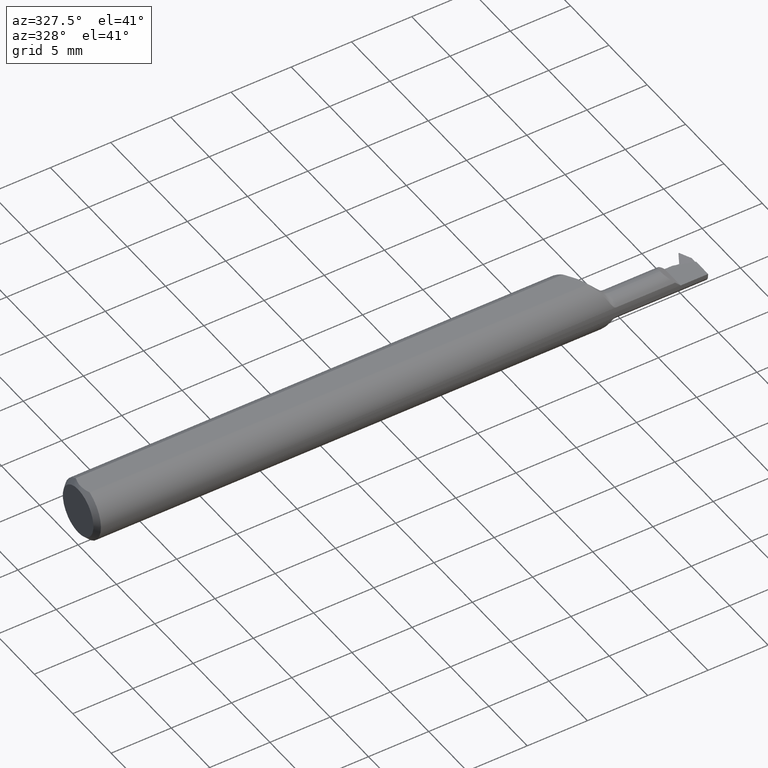
[diagram: clean part render]
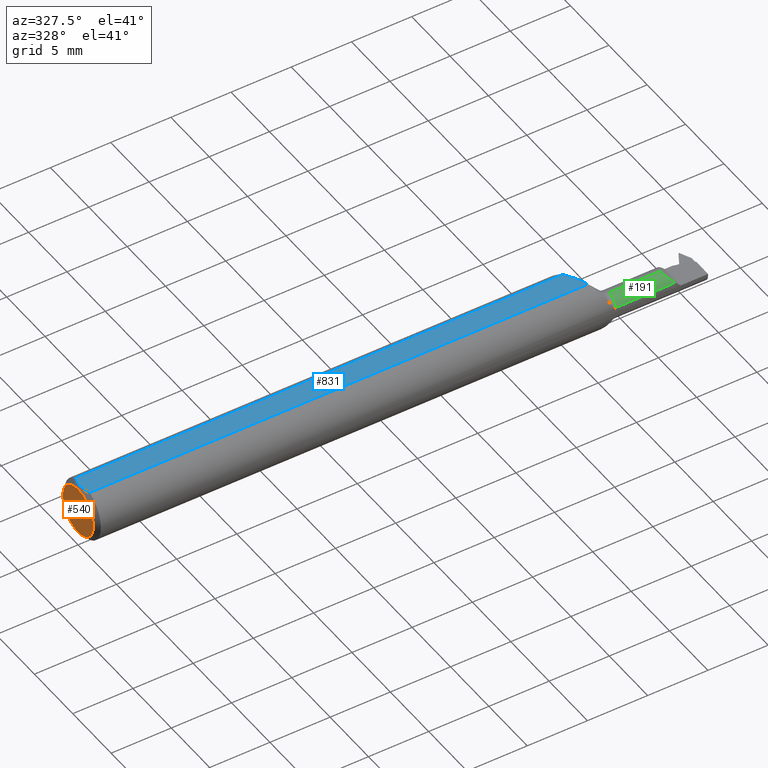
[diagram: same view with three faces highlighted in distinct colors, each labeled with its STEP entity id]
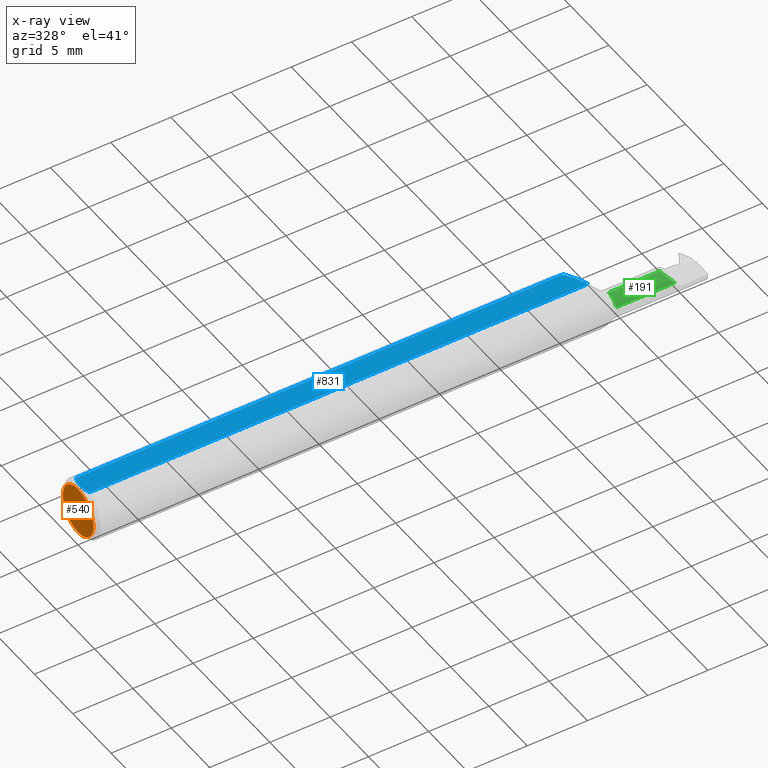
[diagram: x-ray of the same camera — body ghosted, the three highlighted faces saturated]
A machine part, auxiliary view with three faces highlighted in distinct colors.
The next image is the same camera in x-ray (body ghosted, the three faces saturated) — at least one of them is partly hidden behind the body in this view.
Their STEP definitions:

[orange] entity #540 — the highlighted planar face has unit normal (1, 0, 0).
#52 = CARTESIAN_POINT ( 'NONE',  ( 0.000000000000000000, 0.000000000000000000, 0.000000000000000000 ) ) ;
#60 = VERTEX_POINT ( 'NONE', #133 ) ;
#112 = EDGE_CURVE ( 'NONE', #345, #60, #167, .T. ) ;
#133 = CARTESIAN_POINT ( 'NONE',  ( 0.000000000000000000, 1.054420894065873337E-17, 0.07860000000000036402 ) ) ;
#167 = CIRCLE ( 'NONE', #992, 0.07860000000000036402 ) ;
#178 = EDGE_LOOP ( 'NONE', ( #393, #288 ) ) ;
#196 = CIRCLE ( 'NONE', #789, 0.07860000000000036402 ) ;
#218 = CARTESIAN_POINT ( 'NONE',  ( 0.000000000000000000, 0.000000000000000000, 0.000000000000000000 ) ) ;
#219 = FACE_OUTER_BOUND ( 'NONE', #178, .T. ) ;
#288 = ORIENTED_EDGE ( 'NONE', *, *, #866, .T. ) ;
#292 = DIRECTION ( 'NONE',  ( 0.000000000000000000, 0.000000000000000000, -1.000000000000000000 ) ) ;
#345 = VERTEX_POINT ( 'NONE', #910 ) ;
#364 = DIRECTION ( 'NONE',  ( 0.000000000000000000, 0.000000000000000000, -1.000000000000000000 ) ) ;
#370 = DIRECTION ( 'NONE',  ( -1.000000000000000000, -0.000000000000000000, -0.000000000000000000 ) ) ;
#393 = ORIENTED_EDGE ( 'NONE', *, *, #112, .T. ) ;
#540 = ADVANCED_FACE ( 'NONE', ( #219 ), #563, .F. ) ;
#563 = PLANE ( 'NONE',  #592 ) ;
#592 = AXIS2_PLACEMENT_3D ( 'NONE', #648, #960, #973 ) ;
#648 = CARTESIAN_POINT ( 'NONE',  ( 0.000000000000000000, 0.000000000000000000, 0.000000000000000000 ) ) ;
#789 = AXIS2_PLACEMENT_3D ( 'NONE', #218, #370, #364 ) ;
#866 = EDGE_CURVE ( 'NONE', #60, #345, #196, .T. ) ;
#910 = CARTESIAN_POINT ( 'NONE',  ( 0.000000000000000000, 0.000000000000000000, -0.07860000000000036402 ) ) ;
#960 = DIRECTION ( 'NONE',  ( 1.000000000000000000, 0.000000000000000000, 0.000000000000000000 ) ) ;
#973 = DIRECTION ( 'NONE',  ( 0.000000000000000000, 0.000000000000000000, -1.000000000000000000 ) ) ;
#992 = AXIS2_PLACEMENT_3D ( 'NONE', #52, #1012, #292 ) ;
#1012 = DIRECTION ( 'NONE',  ( -1.000000000000000000, -0.000000000000000000, -0.000000000000000000 ) ) ;

[blue] entity #831 — the highlighted planar face has unit normal (-0, 0, -1).
#9 = ORIENTED_EDGE ( 'NONE', *, *, #26, .F. ) ;
#26 = EDGE_CURVE ( 'NONE', #470, #897, #535, .T. ) ;
#27 = ORIENTED_EDGE ( 'NONE', *, *, #252, .T. ) ;
#36 = VECTOR ( 'NONE', #503, 39.37007874015748143 ) ;
#56 = DIRECTION ( 'NONE',  ( -0.000000000000000000, 0.000000000000000000, -1.000000000000000000 ) ) ;
#61 = CARTESIAN_POINT ( 'NONE',  ( 1.643532016763719739, -0.03551619348969495271, 0.08659999999999998255 ) ) ;
#77 = CARTESIAN_POINT ( 'NONE',  ( 0.007999999999999746897, 0.006084273629736270360, 0.08660000000000001030 ) ) ;
#86 = CARTESIAN_POINT ( 'NONE',  ( 0.01499999999999997689, -0.03551619348973089618, 0.08659999999999998255 ) ) ;
#119 = CARTESIAN_POINT ( 'NONE',  ( 1.642183954393337197, -0.02892132315015387423, 0.08659999999999996867 ) ) ;
#169 = CARTESIAN_POINT ( 'NONE',  ( 0.01284132645814099055, 0.02982718733043053169, 0.08659999999999998255 ) ) ;
#173 = LINE ( 'NONE', #1018, #36 ) ;
#185 = EDGE_CURVE ( 'NONE', #727, #488, #884, .T. ) ;
#192 = CARTESIAN_POINT ( 'NONE',  ( 1.615537673577814193, 0.02463921052027019318, 0.08660000000000001030 ) ) ;
#203 = CARTESIAN_POINT ( 'NONE',  ( 1.632337638380980893, -0.004029545949486718244, 0.08659999999999998255 ) ) ;
#237 = EDGE_CURVE ( 'NONE', #897, #1019, #173, .T. ) ;
#252 = EDGE_CURVE ( 'NONE', #488, #1019, #406, .T. ) ;
#262 = ORIENTED_EDGE ( 'NONE', *, *, #185, .T. ) ;
#265 = ORIENTED_EDGE ( 'NONE', *, *, #531, .F. ) ;
#301 = LINE ( 'NONE', #628, #609 ) ;
#371 = CARTESIAN_POINT ( 'NONE',  ( 0.007999999999999731284, 1.373409503060175658E-17, 0.08659999999999998255 ) ) ;
#375 = DIRECTION ( 'NONE',  ( -1.000000000000000000, 0.000000000000000000, 0.000000000000000000 ) ) ;
#387 = CARTESIAN_POINT ( 'NONE',  ( 1.607737149790860132, 0.03551619348973097251, 0.08659999999999998255 ) ) ;
#406 = B_SPLINE_CURVE_WITH_KNOTS ( 'NONE', 3,
 ( #724, #571, #888, #492, #975, #86 ),
 .UNSPECIFIED., .F., .F.,
 ( 4, 2, 4 ),
 ( 0.002803812968293730064, 0.003261451498734896978, 0.003719090029176063891 ),
 .UNSPECIFIED. ) ;
#426 = CARTESIAN_POINT ( 'NONE',  ( 0.01499999999999997689, 0.03551619348973089618, 0.08659999999999998255 ) ) ;
#451 = PLANE ( 'NONE',  #578 ) ;
#470 = VERTEX_POINT ( 'NONE', #387 ) ;
#488 = VERTEX_POINT ( 'NONE', #371 ) ;
#492 = CARTESIAN_POINT ( 'NONE',  ( 0.01108864734896783041, -0.02405407040721167788, 0.08659999999999998255 ) ) ;
#503 = DIRECTION ( 'NONE',  ( -1.000000000000000000, -0.000000000000000000, -0.000000000000000000 ) ) ;
#530 = CARTESIAN_POINT ( 'NONE',  ( 1.622893990646809392, 0.01349229197273295149, 0.08660000000000001030 ) ) ;
#531 = EDGE_CURVE ( 'NONE', #727, #470, #301, .T. ) ;
#533 = FACE_OUTER_BOUND ( 'NONE', #604, .T. ) ;
#535 = B_SPLINE_CURVE_WITH_KNOTS ( 'NONE', 3,
 ( #541, #192, #530, #203, #842, #757, #119, #763 ),
 .UNSPECIFIED., .F., .F.,
 ( 4, 2, 2, 4 ),
 ( 0.004258300968951056996, 0.005277503982789574777, 0.005787105489708838438, 0.006296706996628102099 ),
 .UNSPECIFIED. ) ;
#541 = CARTESIAN_POINT ( 'NONE',  ( 1.607737149790860132, 0.03551619348973097251, 0.08659999999999998255 ) ) ;
#561 = CARTESIAN_POINT ( 'NONE',  ( 0.01499999999999997689, -0.03551619348973089618, 0.08659999999999998255 ) ) ;
#571 = CARTESIAN_POINT ( 'NONE',  ( 0.007999999999999741693, -0.006095550506083000954, 0.08659999999999998255 ) ) ;
#578 = AXIS2_PLACEMENT_3D ( 'NONE', #1010, #56, #375 ) ;
#604 = EDGE_LOOP ( 'NONE', ( #9, #265, #262, #27, #814 ) ) ;
#609 = VECTOR ( 'NONE', #943, 39.37007874015748143 ) ;
#628 = CARTESIAN_POINT ( 'NONE',  ( 2.000000000000000000, 0.03551619348973089618, 0.08659999999999998255 ) ) ;
#644 = CARTESIAN_POINT ( 'NONE',  ( 0.01499999999999997689, 0.03551619348973089618, 0.08659999999999998255 ) ) ;
#724 = CARTESIAN_POINT ( 'NONE',  ( 0.007999999999999731284, 1.373409503060175658E-17, 0.08659999999999998255 ) ) ;
#727 = VERTEX_POINT ( 'NONE', #426 ) ;
#757 = CARTESIAN_POINT ( 'NONE',  ( 1.640130946399818157, -0.02241082931180947424, 0.08659999999999996867 ) ) ;
#763 = CARTESIAN_POINT ( 'NONE',  ( 1.643532016763719739, -0.03551619348969495271, 0.08659999999999998255 ) ) ;
#797 = CARTESIAN_POINT ( 'NONE',  ( 0.008659489716310201507, 0.01217326722089584999, 0.08659999999999998255 ) ) ;
#814 = ORIENTED_EDGE ( 'NONE', *, *, #237, .F. ) ;
#831 = ADVANCED_FACE ( 'NONE', ( #533 ), #451, .F. ) ;
#842 = CARTESIAN_POINT ( 'NONE',  ( 1.635215752939033873, -0.01001064535941997326, 0.08660000000000001030 ) ) ;
#876 = CARTESIAN_POINT ( 'NONE',  ( 0.01107849272577461977, 0.02400420685728455600, 0.08660000000000001030 ) ) ;
#884 = B_SPLINE_CURVE_WITH_KNOTS ( 'NONE', 3,
 ( #644, #169, #876, #797, #77, #1034 ),
 .UNSPECIFIED., .F., .F.,
 ( 4, 2, 4 ),
 ( 0.001890229186177329410, 0.002347021077235529954, 0.002803812968293730064 ),
 .UNSPECIFIED. ) ;
#888 = CARTESIAN_POINT ( 'NONE',  ( 0.008649077606599600218, -0.01212214432639825874, 0.08660000000000001030 ) ) ;
#897 = VERTEX_POINT ( 'NONE', #61 ) ;
#943 = DIRECTION ( 'NONE',  ( 1.000000000000000000, 0.000000000000000000, 0.000000000000000000 ) ) ;
#975 = CARTESIAN_POINT ( 'NONE',  ( 0.01287312418598231430, -0.02991098762076270859, 0.08660000000000001030 ) ) ;
#1010 = CARTESIAN_POINT ( 'NONE',  ( 0.000000000000000000, 0.1749999999999999889, 0.08659999999999998255 ) ) ;
#1018 = CARTESIAN_POINT ( 'NONE',  ( 2.000000000000000000, -0.03551619348973089618, 0.08659999999999998255 ) ) ;
#1019 = VERTEX_POINT ( 'NONE', #561 ) ;
#1034 = CARTESIAN_POINT ( 'NONE',  ( 0.007999999999999731284, 1.373409503060175658E-17, 0.08659999999999998255 ) ) ;

[green] entity #191 — the highlighted cylindrical surface (edge-blend (fillet) strip) has radius 1.0668 mm, axis along (-1, -0, -0).
#1 = CARTESIAN_POINT ( 'NONE',  ( 1.893546287756235014, -0.09207014925373133152, 0.01685371224376497334 ) ) ;
#13 = DIRECTION ( 'NONE',  ( -1.000000000000000000, -0.000000000000000000, -0.000000000000000000 ) ) ;
#81 = CARTESIAN_POINT ( 'NONE',  ( 1.877803701001500958, -0.08517334660846842542, 0.03259629899849901535 ) ) ;
#89 = DIRECTION ( 'NONE',  ( -1.000000000000000000, -0.000000000000000000, -0.000000000000000000 ) ) ;
#97 = CIRCLE ( 'NONE', #508, 0.04200000000000000955 ) ;
#163 = CARTESIAN_POINT ( 'NONE',  ( 1.700355339059327342, -0.09207014925373130376, 0.01685371224376508437 ) ) ;
#168 = LINE ( 'NONE', #414, #215 ) ;
#191 = ADVANCED_FACE ( 'NONE', ( #650 ), #228, .T. ) ;
#198 = VERTEX_POINT ( 'NONE', #1 ) ;
#215 = VECTOR ( 'NONE', #89, 39.37007874015748143 ) ;
#224 = EDGE_CURVE ( 'NONE', #198, #574, #520, .T. ) ;
#225 = VERTEX_POINT ( 'NONE', #163 ) ;
#228 = CYLINDRICAL_SURFACE ( 'NONE', #825, 0.04200000000000000955 ) ;
#238 = CARTESIAN_POINT ( 'NONE',  ( 1.893546287756235014, -0.09207014925373133152, 0.01685371224376497334 ) ) ;
#309 = CARTESIAN_POINT ( 'NONE',  ( 1.700355339059327342, -0.05360000000000000875, 0.04200000000000000955 ) ) ;
#379 = ORIENTED_EDGE ( 'NONE', *, *, #721, .T. ) ;
#383 = ORIENTED_EDGE ( 'NONE', *, *, #633, .T. ) ;
#395 = CARTESIAN_POINT ( 'NONE',  ( 1.689999999999999947, -0.05360000000000000875, 0.000000000000000000 ) ) ;
#409 = DIRECTION ( 'NONE',  ( 1.000000000000000000, 0.000000000000000000, 0.000000000000000000 ) ) ;
#414 = CARTESIAN_POINT ( 'NONE',  ( 1.689999999999999947, -0.05360000000000000875, 0.04200000000000000955 ) ) ;
#490 = LINE ( 'NONE', #956, #707 ) ;
#500 = EDGE_LOOP ( 'NONE', ( #603, #509, #379, #383 ) ) ;
#508 = AXIS2_PLACEMENT_3D ( 'NONE', #582, #998, #512 ) ;
#509 = ORIENTED_EDGE ( 'NONE', *, *, #677, .T. ) ;
#512 = DIRECTION ( 'NONE',  ( 0.000000000000000000, 0.000000000000000000, 1.000000000000000000 ) ) ;
#520 =( BOUNDED_CURVE ( )  B_SPLINE_CURVE ( 3, ( #238, #81, #967, #659 ),
 .UNSPECIFIED., .F., .F. ) 
 B_SPLINE_CURVE_WITH_KNOTS ( ( 4, 4 ),
 ( 5.125301605908218150, 6.283185307179586232 ),
 .UNSPECIFIED. ) 
 CURVE ( )  GEOMETRIC_REPRESENTATION_ITEM ( )  RATIONAL_B_SPLINE_CURVE ( ( 1.000000000000000000, 0.8913613818013861323, 0.8913613818013861323, 1.000000000000000000 ) ) 
 REPRESENTATION_ITEM ( '' )  );
#574 = VERTEX_POINT ( 'NONE', #658 ) ;
#582 = CARTESIAN_POINT ( 'NONE',  ( 1.700355339059327342, -0.05360000000000000875, 0.000000000000000000 ) ) ;
#603 = ORIENTED_EDGE ( 'NONE', *, *, #224, .T. ) ;
#633 = EDGE_CURVE ( 'NONE', #225, #198, #490, .T. ) ;
#650 = FACE_OUTER_BOUND ( 'NONE', #500, .T. ) ;
#658 = CARTESIAN_POINT ( 'NONE',  ( 1.868399999999999617, -0.05360000000000000875, 0.04200000000000000955 ) ) ;
#659 = CARTESIAN_POINT ( 'NONE',  ( 1.868399999999999617, -0.05360000000000000875, 0.04200000000000000955 ) ) ;
#677 = EDGE_CURVE ( 'NONE', #574, #983, #168, .T. ) ;
#707 = VECTOR ( 'NONE', #409, 39.37007874015748143 ) ;
#721 = EDGE_CURVE ( 'NONE', #983, #225, #97, .T. ) ;
#808 = DIRECTION ( 'NONE',  ( 0.000000000000000000, 0.000000000000000000, 1.000000000000000000 ) ) ;
#825 = AXIS2_PLACEMENT_3D ( 'NONE', #395, #13, #808 ) ;
#956 = CARTESIAN_POINT ( 'NONE',  ( 1.822500000000000009, -0.09207014925373130376, 0.01685371224376508437 ) ) ;
#967 = CARTESIAN_POINT ( 'NONE',  ( 1.868399999999999617, -0.07078705688761262327, 0.04200000000000001649 ) ) ;
#983 = VERTEX_POINT ( 'NONE', #309 ) ;
#998 = DIRECTION ( 'NONE',  ( 1.000000000000000000, 0.000000000000000000, 0.000000000000000000 ) ) ;